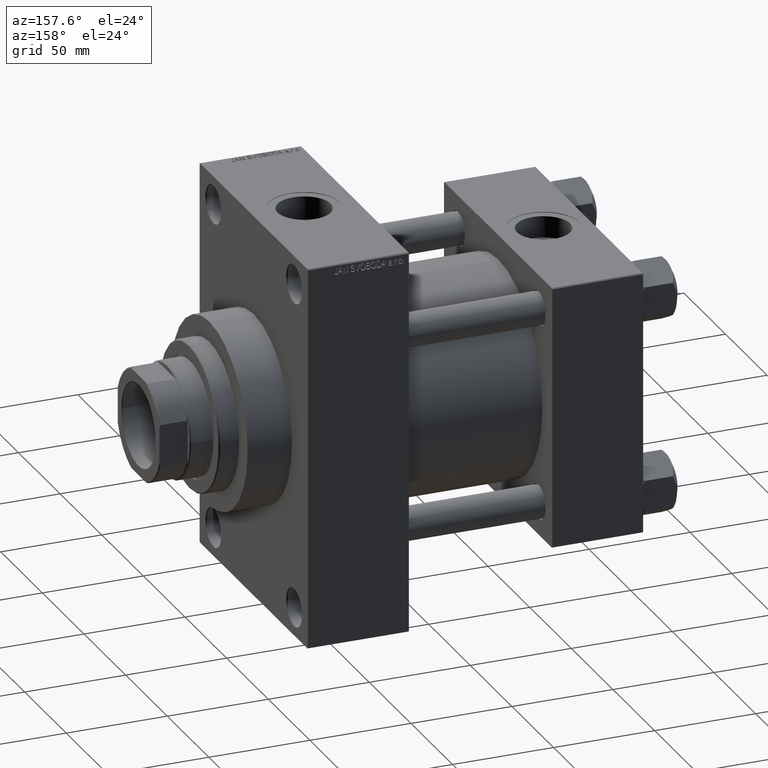
[diagram: clean part render]
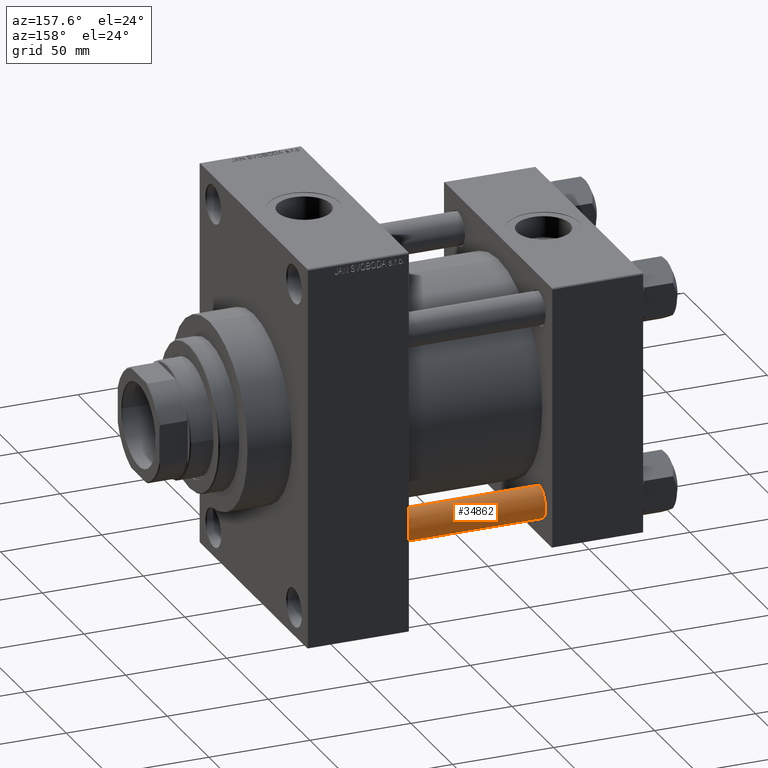
[diagram: same view with one face highlighted and labeled with its STEP entity id]
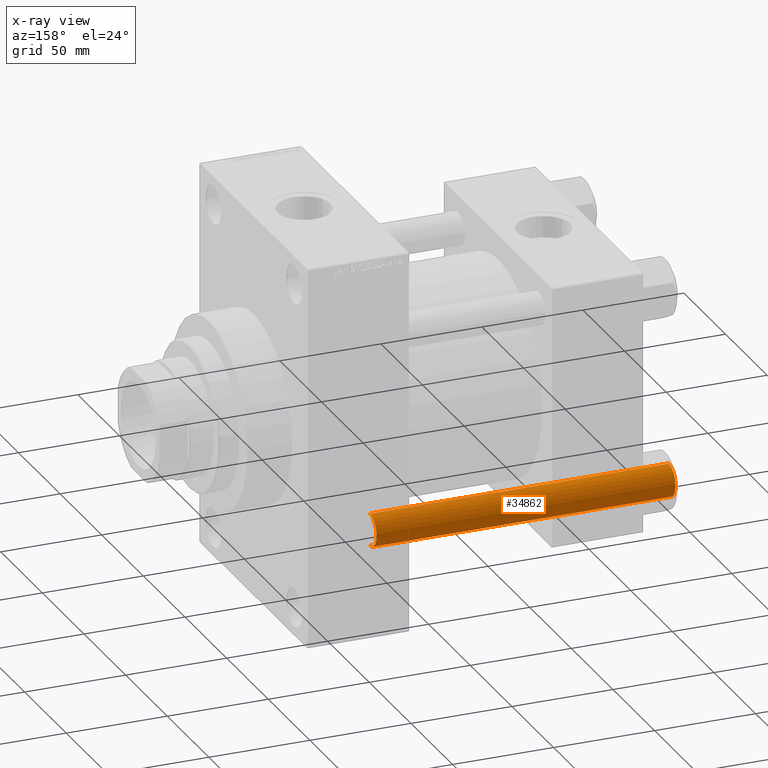
[diagram: x-ray of the same camera — body ghosted, the highlighted face saturated]
A machine part, auxiliary view. The second image highlights one B-rep face of the part: STEP entity #34862.
The next image is the same camera in x-ray: the body ghosted, the highlighted face saturated — about 0% of this face is hidden behind the body in this view.
In plain terms, the highlighted cylindrical surface (edge-blend (fillet) strip) has radius 8 mm, axis along (-1, -0, 0).
Its self-contained STEP definition (entity closure, byte-faithful):
#2331 = EDGE_CURVE ( 'NONE', #11637, #24304, #18369, .T. ) ;
#3026 = VECTOR ( 'NONE', #40840, 1000.000000000000000 ) ;
#3061 = CARTESIAN_POINT ( 'NONE',  ( -8.000000000000000000, 0.000000000000000000, 0.5000000000000281997 ) ) ;
#3735 = CYLINDRICAL_SURFACE ( 'NONE', #28566, 8.000000000000000000 ) ;
#5997 = CARTESIAN_POINT ( 'NONE',  ( 0.000000000000000000, 0.000000000000000000, 0.5000000000000281997 ) ) ;
#7060 = CARTESIAN_POINT ( 'NONE',  ( 8.000000000000000000, 9.797174393178825657E-16, 149.0000000000000000 ) ) ;
#7557 = CIRCLE ( 'NONE', #19070, 8.000000000000000000 ) ;
#7560 = EDGE_CURVE ( 'NONE', #24304, #32359, #23192, .T. ) ;
#11637 = VERTEX_POINT ( 'NONE', #25175 ) ;
#13598 = CARTESIAN_POINT ( 'NONE',  ( -8.000000000000000000, 0.000000000000000000, 149.0000000000000000 ) ) ;
#17391 = CARTESIAN_POINT ( 'NONE',  ( 8.000000000000000000, 9.797174393178825657E-16, 0.5000000000000281997 ) ) ;
#17561 = DIRECTION ( 'NONE',  ( 0.000000000000000000, 0.000000000000000000, -1.000000000000000000 ) ) ;
#18369 = LINE ( 'NONE', #7060, #3026 ) ;
#18436 = CARTESIAN_POINT ( 'NONE',  ( 0.000000000000000000, 0.000000000000000000, 149.0000000000000000 ) ) ;
#19038 = VECTOR ( 'NONE', #28328, 1000.000000000000000 ) ;
#19070 = AXIS2_PLACEMENT_3D ( 'NONE', #43176, #17561, #33035 ) ;
#20688 = DIRECTION ( 'NONE',  ( -0.000000000000000000, -0.000000000000000000, 1.000000000000000000 ) ) ;
#21678 = AXIS2_PLACEMENT_3D ( 'NONE', #5997, #20688, #43399 ) ;
#22228 = CARTESIAN_POINT ( 'NONE',  ( -8.000000000000000000, 0.000000000000000000, 148.5000000000000000 ) ) ;
#23192 = CIRCLE ( 'NONE', #21678, 8.000000000000000000 ) ;
#23663 = EDGE_CURVE ( 'NONE', #27621, #32359, #46685, .T. ) ;
#24304 = VERTEX_POINT ( 'NONE', #17391 ) ;
#24650 = EDGE_CURVE ( 'NONE', #27621, #11637, #7557, .T. ) ;
#25175 = CARTESIAN_POINT ( 'NONE',  ( 8.000000000000000000, 9.797174393178825657E-16, 148.5000000000000000 ) ) ;
#27549 = ORIENTED_EDGE ( 'NONE', *, *, #7560, .T. ) ;
#27621 = VERTEX_POINT ( 'NONE', #22228 ) ;
#28328 = DIRECTION ( 'NONE',  ( -0.000000000000000000, -0.000000000000000000, -1.000000000000000000 ) ) ;
#28566 = AXIS2_PLACEMENT_3D ( 'NONE', #18436, #43099, #37524 ) ;
#31896 = EDGE_LOOP ( 'NONE', ( #43080, #45269, #27549, #38990 ) ) ;
#32359 = VERTEX_POINT ( 'NONE', #3061 ) ;
#33035 = DIRECTION ( 'NONE',  ( 1.000000000000000000, 0.000000000000000000, 0.000000000000000000 ) ) ;
#34862 = ADVANCED_FACE ( 'NONE', ( #40447 ), #3735, .T. ) ;
#37524 = DIRECTION ( 'NONE',  ( -1.000000000000000000, 0.000000000000000000, 0.000000000000000000 ) ) ;
#38990 = ORIENTED_EDGE ( 'NONE', *, *, #23663, .F. ) ;
#40447 = FACE_OUTER_BOUND ( 'NONE', #31896, .T. ) ;
#40840 = DIRECTION ( 'NONE',  ( -0.000000000000000000, -0.000000000000000000, -1.000000000000000000 ) ) ;
#43080 = ORIENTED_EDGE ( 'NONE', *, *, #24650, .T. ) ;
#43099 = DIRECTION ( 'NONE',  ( -0.000000000000000000, -0.000000000000000000, -1.000000000000000000 ) ) ;
#43176 = CARTESIAN_POINT ( 'NONE',  ( 0.000000000000000000, 0.000000000000000000, 148.5000000000000000 ) ) ;
#43399 = DIRECTION ( 'NONE',  ( 1.000000000000000000, 0.000000000000000000, 0.000000000000000000 ) ) ;
#45269 = ORIENTED_EDGE ( 'NONE', *, *, #2331, .T. ) ;
#46685 = LINE ( 'NONE', #13598, #19038 ) ;